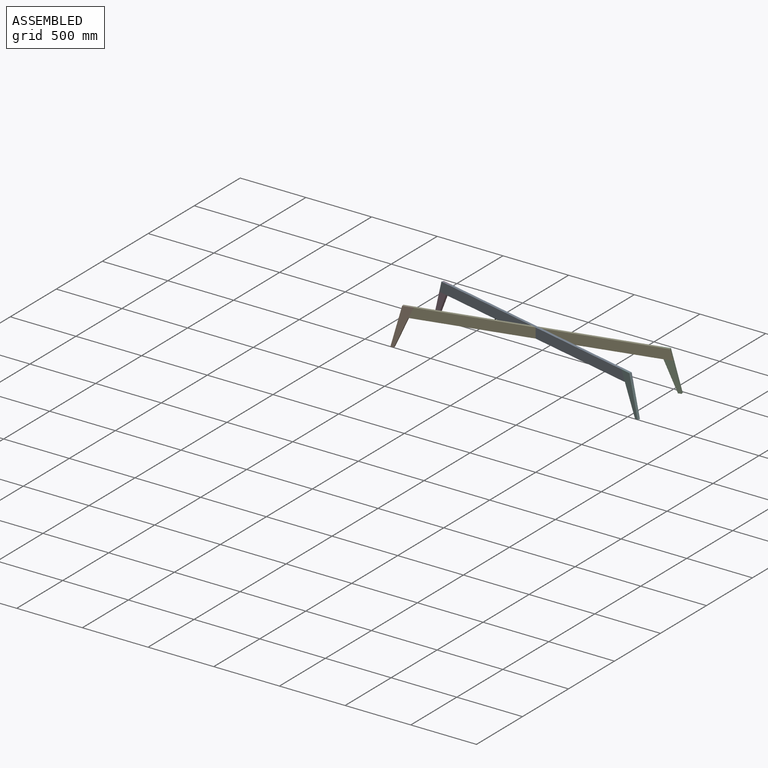
[diagram: assembled view]
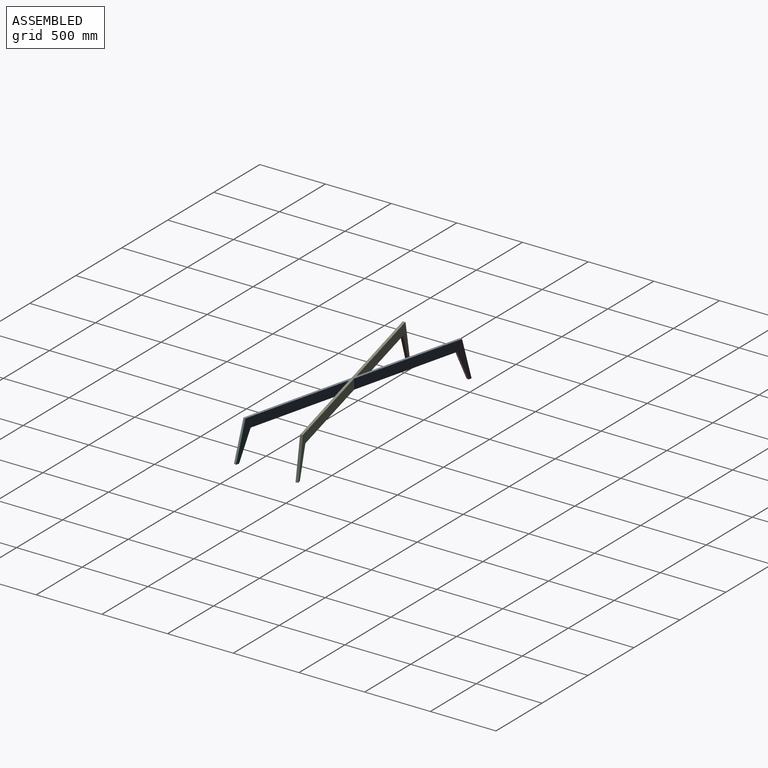
[diagram: assembled view, second angle]
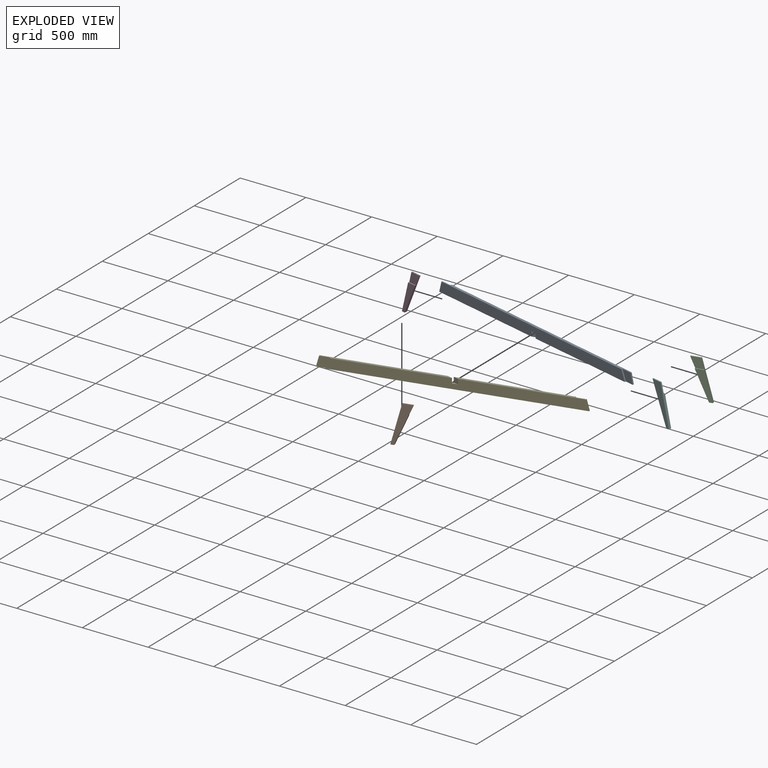
[diagram: exploded view]
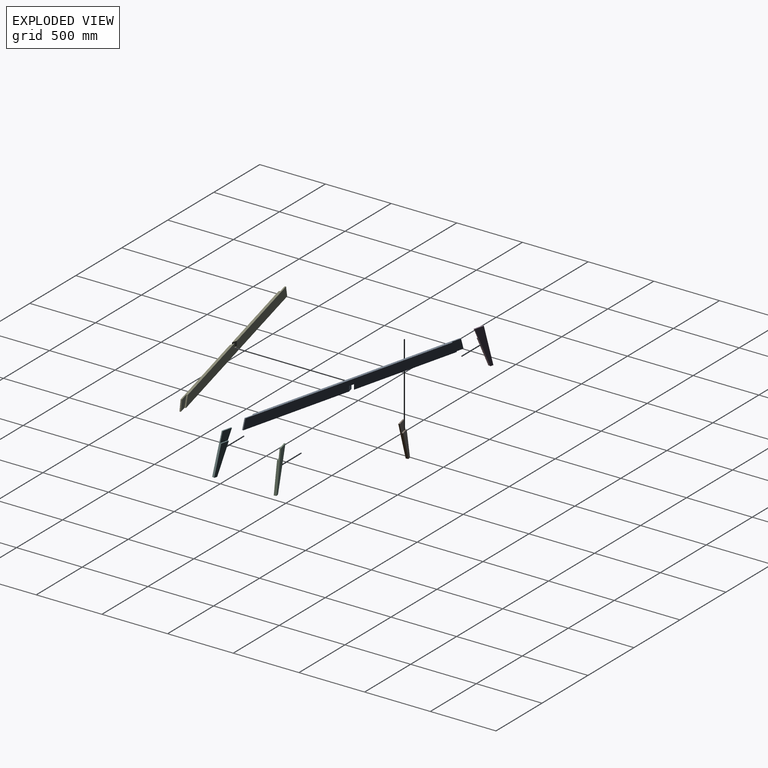
[diagram: exploded view, second angle]
ASSEMBLY  parts=6 mates=4
PART A: 14 faces, bbox 1828.8x19.1x76.2 mm
  f0: plane 912.02x19.05mm, normal (0,0,-1), area 16433.2mm2, adj f1,f3,f4,f7,f8,f11
  f1: plane 1765.75x76.2mm, normal (0,-1,0), area 130950.9mm2, adj f0,f2,f4,f5,f9,f11,f12,f13
  f2: plane 1787.96x19.05mm, normal (0,0,1), area 32609.1mm2, adj f1,f3,f4,f6,f7,f8,f9,f10
  f3: plane 1765.75x76.2mm, normal (0,1,0), area 130950.9mm2, adj f0,f2,f5,f6,f7,f11,f12,f13
  f4: plane 76.2x20.42mm, normal (-0.97,0,0.26), area 751.4mm2, adj f0,f1,f2,f8
  f5: plane 912.02x19.05mm, normal (0,0,-1), area 16433.2mm2, adj f1,f3,f6,f9,f10,f12
  f6: plane 76.2x20.42mm, normal (0.97,0,0.26), area 751.4mm2, adj f2,f3,f5,f10
  f7: plane 76.2x33.57mm, normal (-0.92,0,0.4), area 793.1mm2, adj f0,f2,f3,f8
  f8: plane 96.62x76.2mm, normal (0,1,0), area 5305.5mm2, adj f0,f2,f4,f7
  f9: plane 76.2x33.57mm, normal (0.92,0,0.4), area 793.1mm2, adj f1,f2,f5,f10
  f10: plane 96.62x76.2mm, normal (0,-1,0), area 5305.5mm2, adj f2,f5,f6,f9
  f11: plane 38.1x35.72mm, normal (0.47,-0.88,0), area 1542.3mm2, adj f0,f1,f3,f13
  f12: plane 38.1x35.72mm, normal (-0.47,0.88,0), area 1542.3mm2, adj f1,f3,f5,f13
  f13: plane 76.2x19.05mm, normal (0,0,-1), area 771.2mm2, adj f1,f3,f11,f12
PART B: 8 faces, bbox 155.1x19.1x294.4 mm
  f0: plane 76.2x9.53mm, normal (0,0,1), area 725.8mm2, adj f1,f2,f5,f6
  f1: plane 294.41x78.89mm, normal (-0.97,0,0.26), area 5055mm2, adj f0,f3,f4,f5,f6,f7
  f2: plane 294.41x129.69mm, normal (0.92,0,-0.4), area 5335.5mm2, adj f0,f3,f4,f5,f6,f7
  f3: plane 218.21x121.52mm, normal (0,1,0), area 9650.7mm2, adj f1,f2,f4,f7
  f4: plane 25.4x19.05mm, normal (0,0,-1), area 483.9mm2, adj f1,f2,f3,f5
  f5: plane 294.41x155.09mm, normal (0,-1,0), area 14956.2mm2, adj f0,f1,f2,f4
  f6: plane 96.62x76.2mm, normal (0,1,0), area 5305.5mm2, adj f0,f1,f2,f7
  f7: plane 63.05x9.53mm, normal (0,0,1), area 600.6mm2, adj f1,f2,f3,f6
PART C: 8 faces, bbox 155.1x19.1x294.4 mm
  f0: plane 76.2x9.53mm, normal (0,0,1), area 725.8mm2, adj f1,f2,f5,f6
  f1: plane 294.41x78.89mm, normal (0.97,0,0.26), area 5055mm2, adj f0,f3,f4,f5,f6,f7
  f2: plane 294.41x129.69mm, normal (-0.92,0,-0.4), area 5335.5mm2, adj f0,f3,f4,f5,f6,f7
  f3: plane 218.21x121.52mm, normal (0,-1,0), area 9650.7mm2, adj f1,f2,f4,f7
  f4: plane 25.4x19.05mm, normal (0,0,-1), area 483.9mm2, adj f1,f2,f3,f5
  f5: plane 294.41x155.09mm, normal (0,1,0), area 14956.2mm2, adj f0,f1,f2,f4
  f6: plane 96.62x76.2mm, normal (0,-1,0), area 5305.5mm2, adj f0,f1,f2,f7
  f7: plane 63.05x9.53mm, normal (0,0,1), area 600.6mm2, adj f1,f2,f3,f6
PART D: 8 faces, bbox 155.1x19.1x294.4 mm
  f0: plane 76.2x9.53mm, normal (0,0,1), area 725.8mm2, adj f1,f2,f5,f6
  f1: plane 294.41x78.89mm, normal (-0.97,0,0.26), area 5055mm2, adj f0,f3,f4,f5,f6,f7
  f2: plane 294.41x129.69mm, normal (0.92,0,-0.4), area 5335.5mm2, adj f0,f3,f4,f5,f6,f7
  f3: plane 218.21x121.52mm, normal (0,-1,0), area 9650.7mm2, adj f1,f2,f4,f7
  f4: plane 25.4x19.05mm, normal (0,0,-1), area 483.9mm2, adj f1,f2,f3,f5
  f5: plane 294.41x155.09mm, normal (0,1,0), area 14956.2mm2, adj f0,f1,f2,f4
  f6: plane 96.62x76.2mm, normal (0,-1,0), area 5305.5mm2, adj f0,f1,f2,f7
  f7: plane 63.05x9.53mm, normal (0,0,1), area 600.6mm2, adj f1,f2,f3,f6
PART E: 14 faces, bbox 1828.8x19.1x76.2 mm
  f0: plane 891.6x19.05mm, normal (0,0,1), area 15919mm2, adj f2,f5,f6,f7,f8,f11
  f1: plane 891.6x19.05mm, normal (0,0,1), area 15919mm2, adj f2,f3,f5,f9,f10,f12
  f2: plane 1765.75x76.2mm, normal (0,-1,0), area 130950.9mm2, adj f0,f1,f3,f4,f7,f11,f12,f13
  f3: plane 76.2x20.42mm, normal (0.97,0,0.26), area 751.4mm2, adj f1,f2,f4,f10
  f4: plane 1828.8x19.05mm, normal (0,0,-1), area 33637.5mm2, adj f2,f3,f5,f6,f7,f8,f9,f10
  f5: plane 1765.75x76.2mm, normal (0,1,0), area 130950.9mm2, adj f0,f1,f4,f6,f9,f11,f12,f13
  f6: plane 76.2x20.42mm, normal (-0.97,0,0.26), area 751.4mm2, adj f0,f4,f5,f8
  f7: plane 76.2x33.57mm, normal (-0.92,0,0.4), area 793.1mm2, adj f0,f2,f4,f8
  f8: plane 96.62x76.2mm, normal (0,-1,0), area 5305.5mm2, adj f0,f4,f6,f7
  f9: plane 76.2x33.57mm, normal (0.92,0,0.4), area 793.1mm2, adj f1,f4,f5,f10
  f10: plane 96.62x76.2mm, normal (0,1,0), area 5305.5mm2, adj f1,f3,f4,f9
  f11: plane 38.1x35.72mm, normal (0.47,0.88,0), area 1542.3mm2, adj f0,f2,f5,f13
  f12: plane 38.1x35.72mm, normal (-0.47,-0.88,0), area 1542.3mm2, adj f1,f2,f5,f13
  f13: plane 76.2x19.05mm, normal (0,0,1), area 771.2mm2, adj f2,f5,f11,f12
PART F: 8 faces, bbox 155.1x19.1x294.4 mm
  f0: plane 76.2x9.53mm, normal (0,0,1), area 725.8mm2, adj f1,f2,f5,f6
  f1: plane 294.41x78.89mm, normal (0.97,0,0.26), area 5055mm2, adj f0,f3,f4,f5,f6,f7
  f2: plane 294.41x129.69mm, normal (-0.92,0,-0.4), area 5335.5mm2, adj f0,f3,f4,f5,f6,f7
  f3: plane 218.21x121.52mm, normal (0,1,0), area 9650.7mm2, adj f1,f2,f4,f7
  f4: plane 25.4x19.05mm, normal (0,0,-1), area 483.9mm2, adj f1,f2,f3,f5
  f5: plane 294.41x155.09mm, normal (0,-1,0), area 14956.2mm2, adj f0,f1,f2,f4
  f6: plane 96.62x76.2mm, normal (0,1,0), area 5305.5mm2, adj f0,f1,f2,f7
  f7: plane 63.05x9.53mm, normal (0,0,1), area 600.6mm2, adj f1,f2,f3,f6
PLACE A rot(axis=(0,0,-1),14deg) t=(-138.72,54.01,38.1)mm
PLACE B rot(axis=(0,0,1),14deg) t=(-795.74,-179.57,38.1)mm
PLACE C rot(axis=(0,0,1),14deg) t=(795.61,198.62,38.1)mm
PLACE D rot(axis=(0,0,-1),14deg) t=(-795.74,198.63,38.1)mm
PLACE E rot(axis=(0,0,1),14deg) t=(-141.03,-25.71,38.1)mm
PLACE F rot(axis=(0,0,-1),14deg) t=(795.61,-179.57,38.1)mm
MATE fastened C.f6 <-> E.f10  axis (0.24,-0.97,0) through (867.23,226.35,38.1)mm
MATE fastened D.f6 <-> A.f8  axis (-0.24,-0.97,0) through (-867.35,226.35,38.1)mm
MATE fastened A.f10 <-> F.f6  axis (-0.24,-0.97,0) through (867.23,-207.29,38.1)mm
MATE fastened E.f8 <-> B.f6  axis (0.24,-0.97,0) through (-867.36,-207.29,38.1)mm
